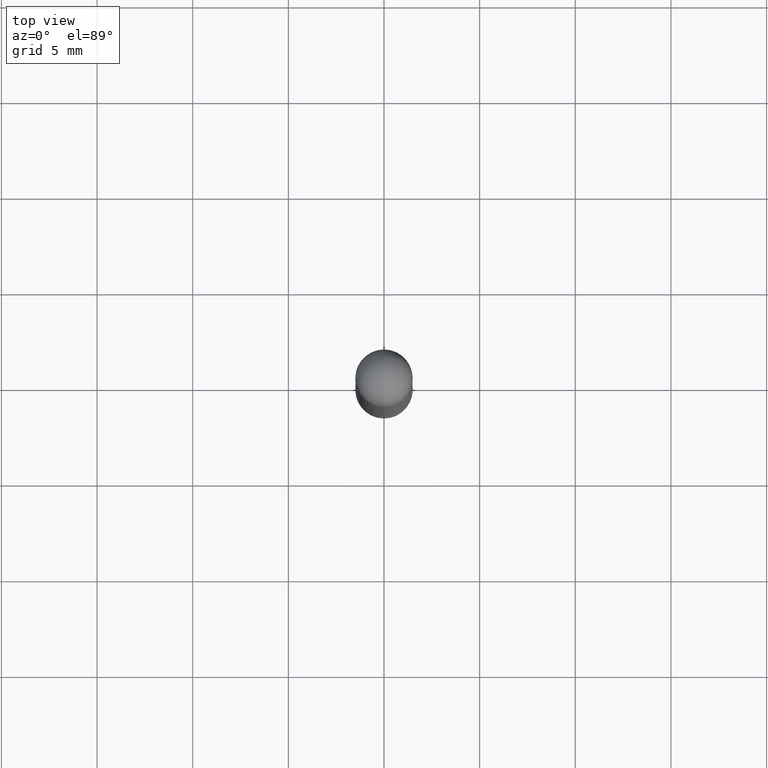
[diagram: clean part render]
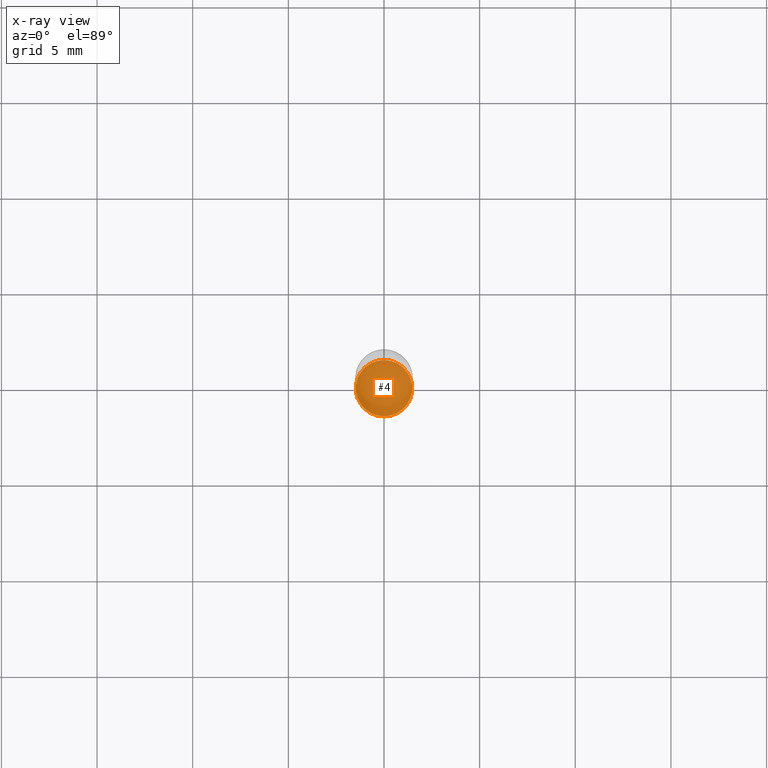
[diagram: x-ray — body ghosted, one internal face saturated and labeled with its STEP entity id]
A machine part, top view, then the same camera in x-ray: the body is ghosted and one INTERNAL B-rep face — a face not visible from any outside direction — is saturated and labeled: STEP entity #4.
In plain terms, the highlighted planar face has unit normal (-0, 0, 1).
Its self-contained STEP definition (entity closure, byte-faithful):
#4 = ADVANCED_FACE ( 'NONE', ( #169 ), #607, .F. ) ;
#93 = CARTESIAN_POINT ( 'NONE',  ( 3.086529559032535160E-29, -4.391064783420485039E-15, -1.259899999999999798 ) ) ;
#105 = DIRECTION ( 'NONE',  ( -2.449821064396012218E-29, 3.485248657370018036E-15, 1.000000000000000000 ) ) ;
#106 = CIRCLE ( 'NONE', #560, 0.05805000000000000437 ) ;
#164 = CIRCLE ( 'NONE', #475, 0.05805000000000000437 ) ;
#169 = FACE_OUTER_BOUND ( 'NONE', #661, .T. ) ;
#279 = DIRECTION ( 'NONE',  ( -6.982962677686265922E-15, -1.000000000000000000, 4.706025828879006204E-15 ) ) ;
#280 = EDGE_CURVE ( 'NONE', #456, #314, #106, .T. ) ;
#289 = DIRECTION ( 'NONE',  ( -6.982962677686265922E-15, -1.000000000000000000, 3.485248657370018430E-15 ) ) ;
#297 = AXIS2_PLACEMENT_3D ( 'NONE', #93, #532, #289 ) ;
#314 = VERTEX_POINT ( 'NONE', #691 ) ;
#355 = ORIENTED_EDGE ( 'NONE', *, *, #280, .F. ) ;
#434 = DIRECTION ( 'NONE',  ( -6.982962677686265922E-15, -1.000000000000000000, 4.706025828879006204E-15 ) ) ;
#456 = VERTEX_POINT ( 'NONE', #703 ) ;
#475 = AXIS2_PLACEMENT_3D ( 'NONE', #533, #520, #279 ) ;
#488 = CARTESIAN_POINT ( 'NONE',  ( 3.086529559032535160E-29, -4.391064783420485039E-15, -1.259899999999999798 ) ) ;
#520 = DIRECTION ( 'NONE',  ( -2.449821064396012218E-29, 3.485248657370018036E-15, 1.000000000000000000 ) ) ;
#532 = DIRECTION ( 'NONE',  ( -2.449821064396011658E-29, 3.485248657370018430E-15, 1.000000000000000000 ) ) ;
#533 = CARTESIAN_POINT ( 'NONE',  ( 3.086529559032535160E-29, -4.391064783420485039E-15, -1.259899999999999798 ) ) ;
#560 = AXIS2_PLACEMENT_3D ( 'NONE', #488, #105, #434 ) ;
#563 = ORIENTED_EDGE ( 'NONE', *, *, #610, .F. ) ;
#607 = PLANE ( 'NONE',  #297 ) ;
#610 = EDGE_CURVE ( 'NONE', #314, #456, #164, .T. ) ;
#661 = EDGE_LOOP ( 'NONE', ( #563, #355 ) ) ;
#691 = CARTESIAN_POINT ( 'NONE',  ( -4.053609834396569077E-16, -0.05805000000000438976, -1.259899999999999576 ) ) ;
#703 = CARTESIAN_POINT ( 'NONE',  ( 4.160227717875699517E-16, 0.05804999999999561899, -1.259900000000000020 ) ) ;